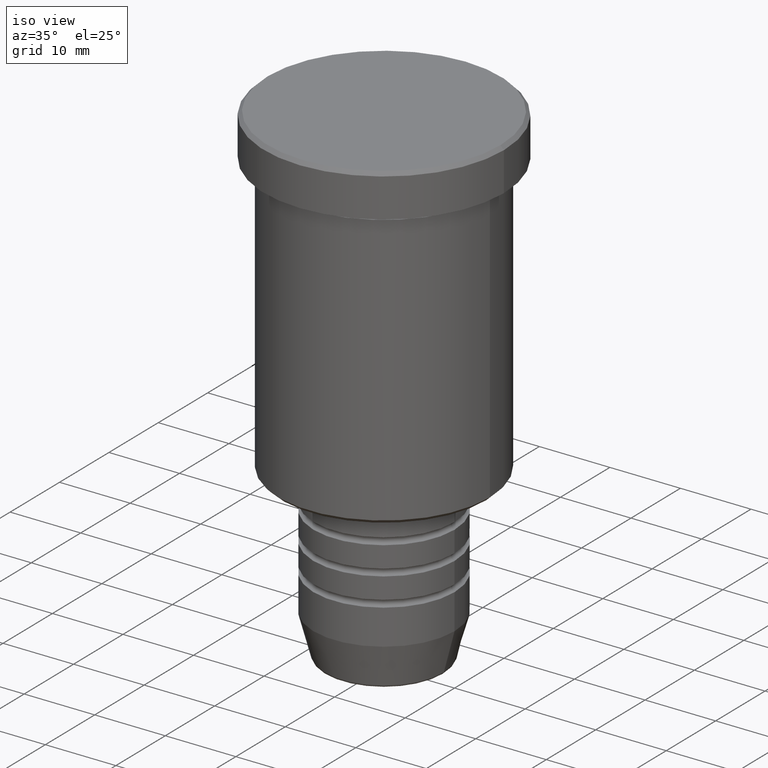
[diagram: clean part render]
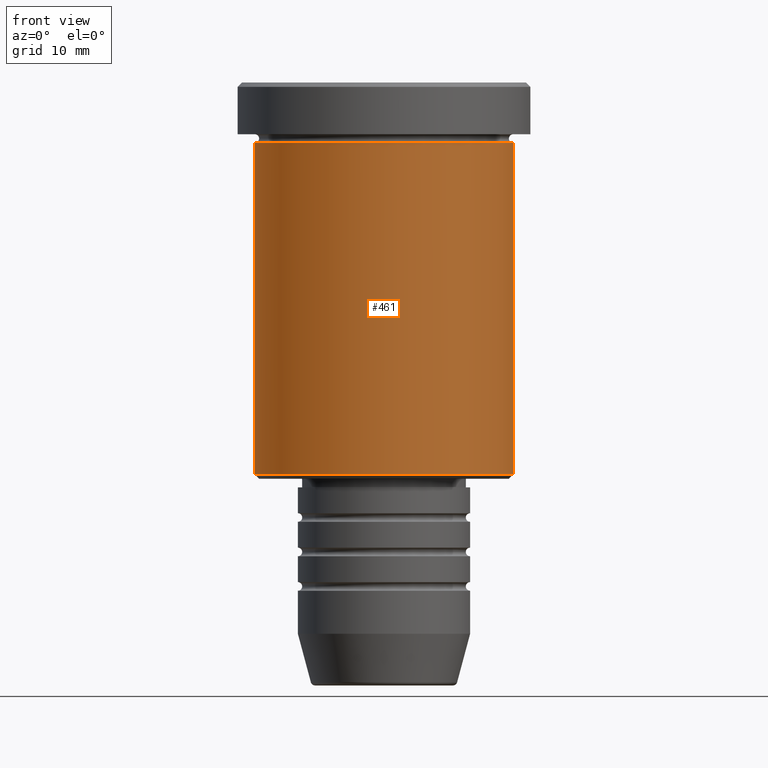
[diagram: tour spotlight — one face highlighted and labeled with its STEP entity id]
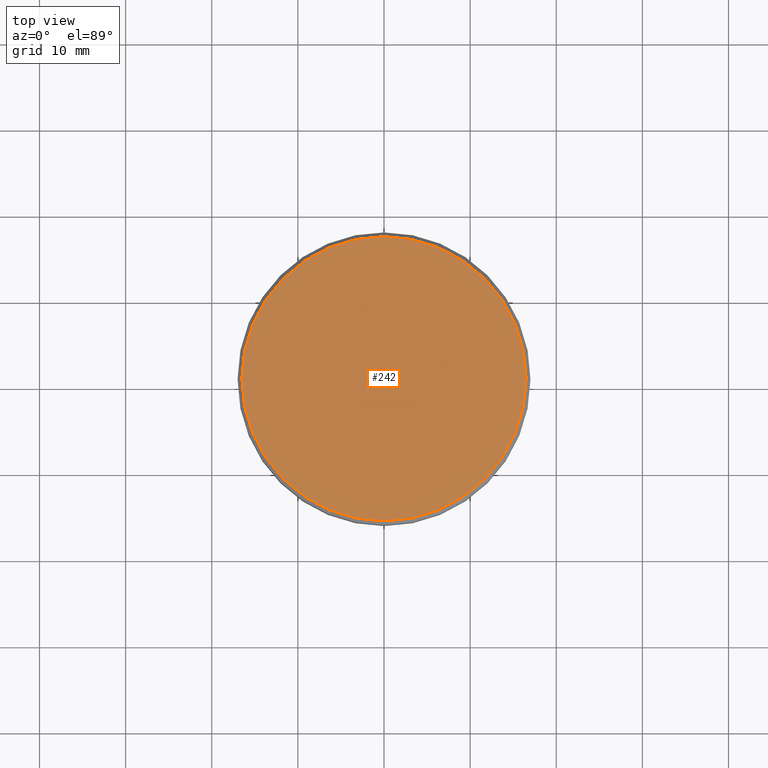
[diagram: tour spotlight — one face highlighted and labeled with its STEP entity id]
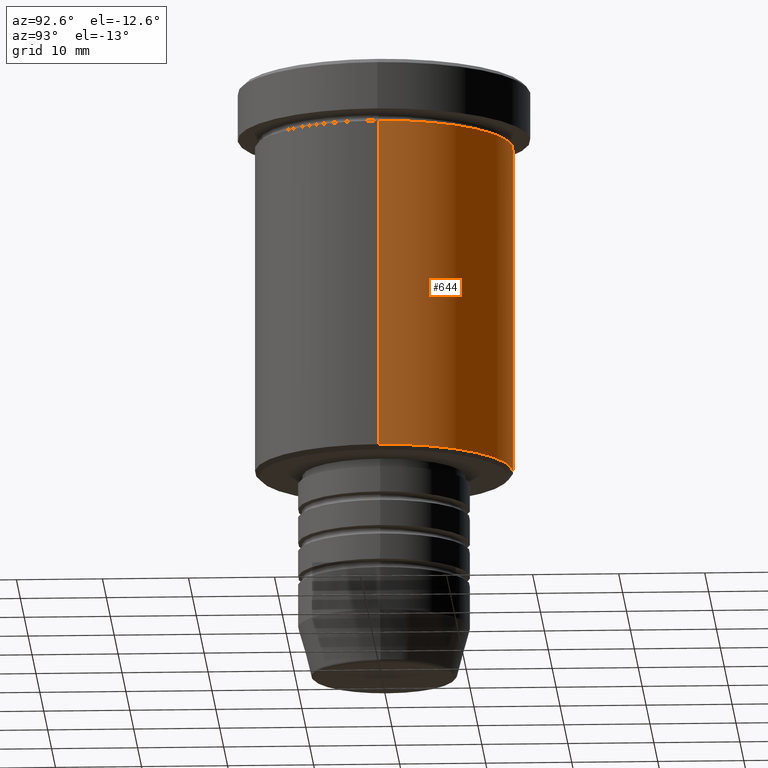
[diagram: tour spotlight — one face highlighted and labeled with its STEP entity id]
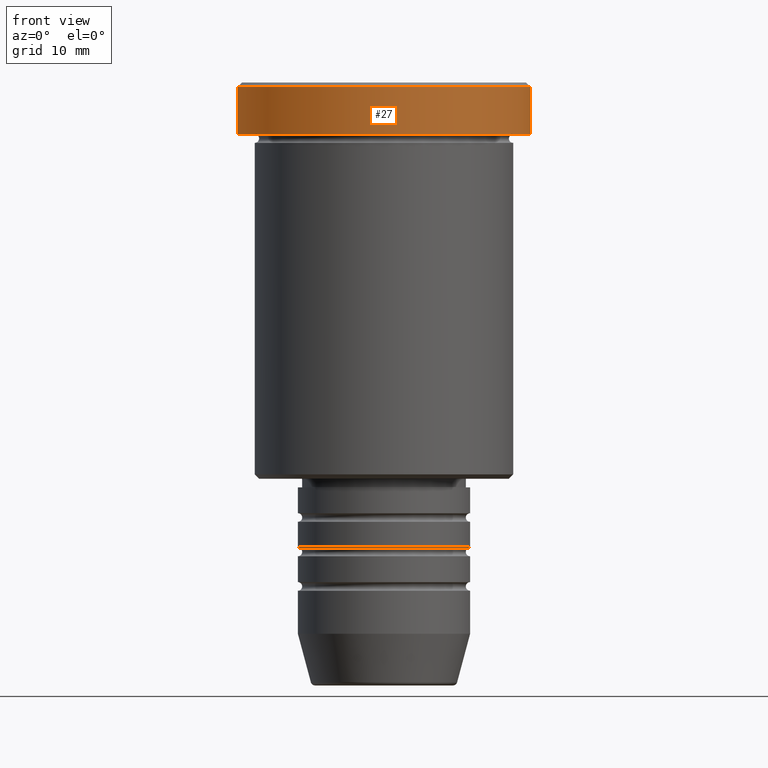
[diagram: tour spotlight — one face highlighted and labeled with its STEP entity id]
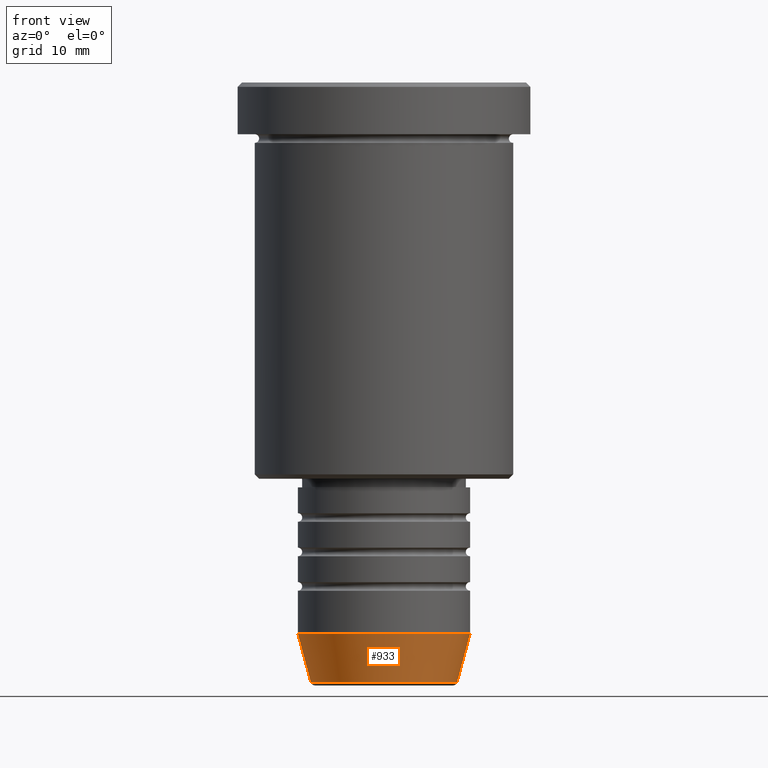
[diagram: tour spotlight — one face highlighted and labeled with its STEP entity id]
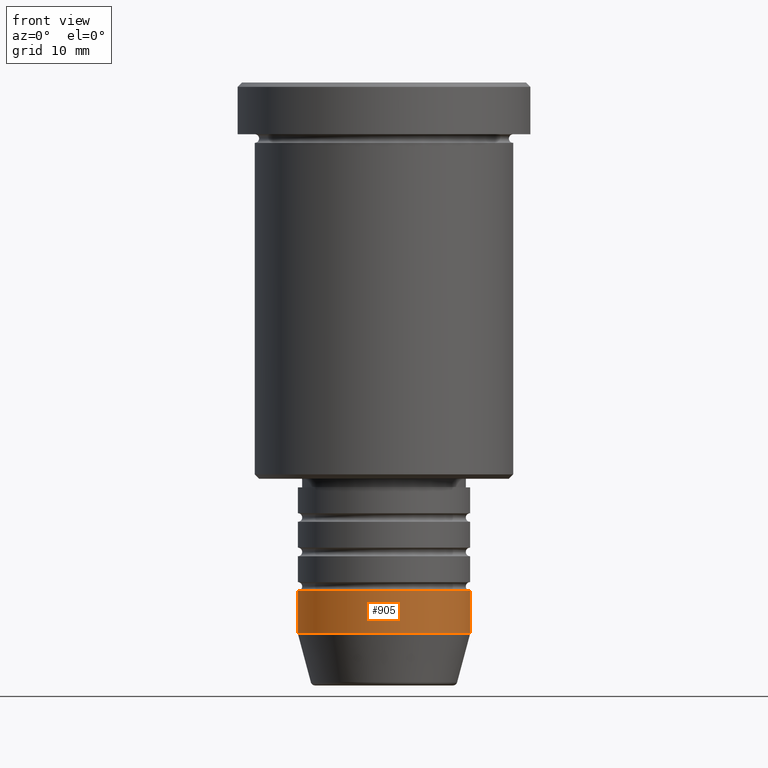
[diagram: tour spotlight — one face highlighted and labeled with its STEP entity id]
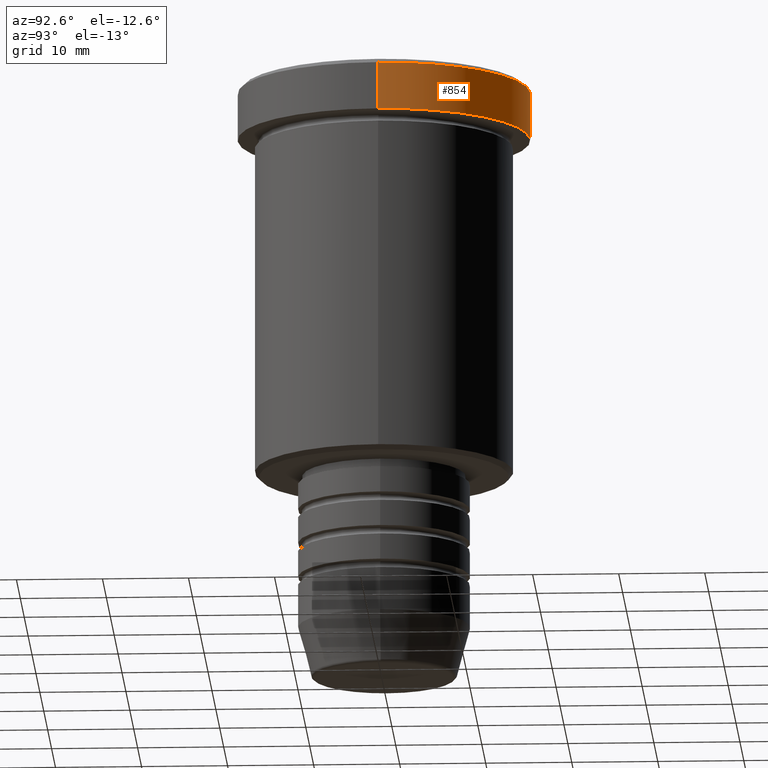
[diagram: tour spotlight — one face highlighted and labeled with its STEP entity id]
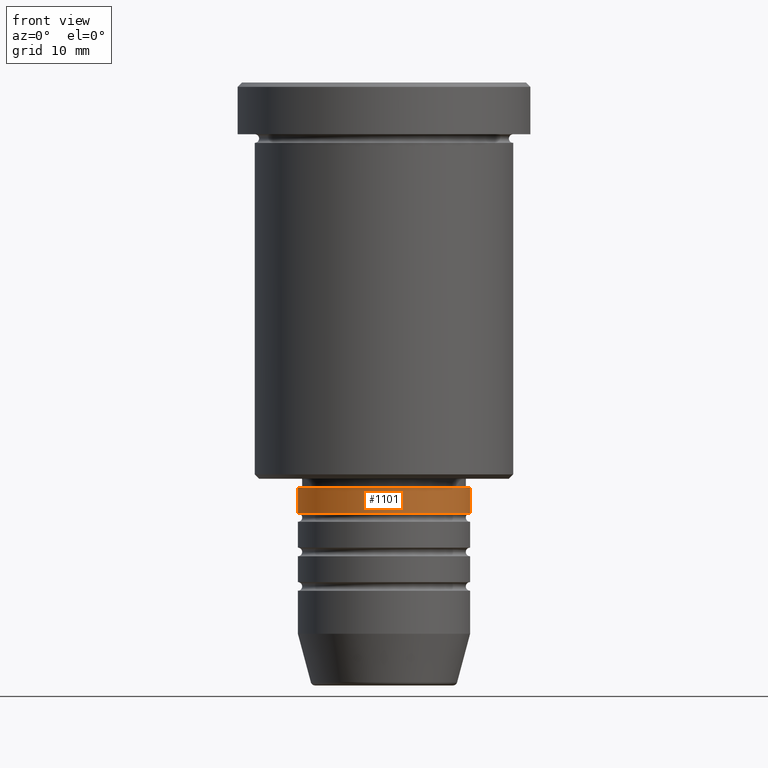
[diagram: tour spotlight — one face highlighted and labeled with its STEP entity id]
A machine part: a face-by-face anatomy tour. The part has 43 B-rep faces; the first image is the clean iso view, then the 8 largest visible faces are spotlighted one at a time (largest first), each with its STEP entity span.

Face 1 — front view, entity #461. In plain terms, the highlighted cylindrical surface (partial cylindrical patch) has radius 15 mm, axis along (-0, -0, 1).
Definition (entity closure, byte-faithful):
#52 = CARTESIAN_POINT ( 'NONE',  ( -15.00000000000000000, 1.836970198721029589E-15, -45.50000000000000711 ) ) ;
#70 = DIRECTION ( 'NONE',  ( -0.000000000000000000, -0.000000000000000000, 1.000000000000000000 ) ) ;
#74 = CIRCLE ( 'NONE', #769, 15.00000000000000000 ) ;
#108 = CARTESIAN_POINT ( 'NONE',  ( 15.00000000000000000, 0.000000000000000000, 0.000000000000000000 ) ) ;
#132 = CARTESIAN_POINT ( 'NONE',  ( 15.00000000000000000, 0.000000000000000000, -45.50000000000000711 ) ) ;
#137 = VERTEX_POINT ( 'NONE', #440 ) ;
#145 = VECTOR ( 'NONE', #1118, 1000.000000000000000 ) ;
#270 = VERTEX_POINT ( 'NONE', #843 ) ;
#271 = CARTESIAN_POINT ( 'NONE',  ( -15.00000000000000000, 1.836970198721029589E-15, 0.000000000000000000 ) ) ;
#315 = DIRECTION ( 'NONE',  ( -0.000000000000000000, -0.000000000000000000, 1.000000000000000000 ) ) ;
#331 = CARTESIAN_POINT ( 'NONE',  ( 0.000000000000000000, 0.000000000000000000, 0.000000000000000000 ) ) ;
#377 = EDGE_CURVE ( 'NONE', #1171, #270, #922, .T. ) ;
#382 = ORIENTED_EDGE ( 'NONE', *, *, #939, .F. ) ;
#420 = CYLINDRICAL_SURFACE ( 'NONE', #910, 15.00000000000000000 ) ;
#440 = CARTESIAN_POINT ( 'NONE',  ( -15.00000000000000000, 1.836970198721029589E-15, -6.999999999999995559 ) ) ;
#461 = ADVANCED_FACE ( 'NONE', ( #1168 ), #420, .T. ) ;
#494 = ORIENTED_EDGE ( 'NONE', *, *, #377, .T. ) ;
#515 = EDGE_LOOP ( 'NONE', ( #723, #983, #494, #382 ) ) ;
#521 = VECTOR ( 'NONE', #618, 1000.000000000000000 ) ;
#558 = AXIS2_PLACEMENT_3D ( 'NONE', #1126, #315, #679 ) ;
#594 = CARTESIAN_POINT ( 'NONE',  ( 0.000000000000000000, 0.000000000000000000, -6.999999999999995559 ) ) ;
#618 = DIRECTION ( 'NONE',  ( -0.000000000000000000, -0.000000000000000000, 1.000000000000000000 ) ) ;
#679 = DIRECTION ( 'NONE',  ( -1.000000000000000000, 0.000000000000000000, 0.000000000000000000 ) ) ;
#723 = ORIENTED_EDGE ( 'NONE', *, *, #1019, .F. ) ;
#762 = DIRECTION ( 'NONE',  ( 1.000000000000000000, 0.000000000000000000, 0.000000000000000000 ) ) ;
#769 = AXIS2_PLACEMENT_3D ( 'NONE', #594, #878, #1070 ) ;
#802 = EDGE_CURVE ( 'NONE', #919, #1171, #814, .T. ) ;
#814 = CIRCLE ( 'NONE', #558, 15.00000000000000000 ) ;
#843 = CARTESIAN_POINT ( 'NONE',  ( 15.00000000000000000, 0.000000000000000000, -6.999999999999995559 ) ) ;
#878 = DIRECTION ( 'NONE',  ( -0.000000000000000000, -0.000000000000000000, 1.000000000000000000 ) ) ;
#898 = LINE ( 'NONE', #271, #521 ) ;
#910 = AXIS2_PLACEMENT_3D ( 'NONE', #331, #70, #762 ) ;
#919 = VERTEX_POINT ( 'NONE', #52 ) ;
#922 = LINE ( 'NONE', #108, #145 ) ;
#939 = EDGE_CURVE ( 'NONE', #137, #270, #74, .T. ) ;
#983 = ORIENTED_EDGE ( 'NONE', *, *, #802, .T. ) ;
#1019 = EDGE_CURVE ( 'NONE', #919, #137, #898, .T. ) ;
#1070 = DIRECTION ( 'NONE',  ( 1.000000000000000000, 0.000000000000000000, 0.000000000000000000 ) ) ;
#1118 = DIRECTION ( 'NONE',  ( -0.000000000000000000, -0.000000000000000000, 1.000000000000000000 ) ) ;
#1126 = CARTESIAN_POINT ( 'NONE',  ( 0.000000000000000000, 0.000000000000000000, -45.50000000000000711 ) ) ;
#1168 = FACE_OUTER_BOUND ( 'NONE', #515, .T. ) ;
#1171 = VERTEX_POINT ( 'NONE', #132 ) ;

Face 2 — top view, entity #242. In plain terms, the highlighted planar face has unit normal (0, -0, 1).
Definition (entity closure, byte-faithful):
#5 = EDGE_CURVE ( 'NONE', #751, #237, #697, .T. ) ;
#103 = DIRECTION ( 'NONE',  ( 1.000000000000000000, 0.000000000000000000, 0.000000000000000000 ) ) ;
#160 = ORIENTED_EDGE ( 'NONE', *, *, #5, .T. ) ;
#237 = VERTEX_POINT ( 'NONE', #701 ) ;
#242 = ADVANCED_FACE ( 'NONE', ( #354 ), #717, .T. ) ;
#252 = EDGE_LOOP ( 'NONE', ( #160, #1164 ) ) ;
#264 = CIRCLE ( 'NONE', #895, 16.50000000000000000 ) ;
#302 = AXIS2_PLACEMENT_3D ( 'NONE', #492, #880, #1154 ) ;
#332 = EDGE_CURVE ( 'NONE', #237, #751, #264, .T. ) ;
#354 = FACE_OUTER_BOUND ( 'NONE', #252, .T. ) ;
#492 = CARTESIAN_POINT ( 'NONE',  ( 0.000000000000000000, 0.000000000000000000, 0.000000000000000000 ) ) ;
#569 = DIRECTION ( 'NONE',  ( -0.000000000000000000, -0.000000000000000000, 1.000000000000000000 ) ) ;
#620 = CARTESIAN_POINT ( 'NONE',  ( 0.000000000000000000, 0.000000000000000000, 0.000000000000000000 ) ) ;
#697 = CIRCLE ( 'NONE', #302, 16.50000000000000000 ) ;
#701 = CARTESIAN_POINT ( 'NONE',  ( 16.50000000000000000, 2.051283388571816887E-15, 0.000000000000000000 ) ) ;
#717 = PLANE ( 'NONE',  #834 ) ;
#735 = CARTESIAN_POINT ( 'NONE',  ( 0.000000000000000000, 0.000000000000000000, 0.000000000000000000 ) ) ;
#747 = CARTESIAN_POINT ( 'NONE',  ( -16.50000000000000000, 0.000000000000000000, 0.000000000000000000 ) ) ;
#751 = VERTEX_POINT ( 'NONE', #747 ) ;
#834 = AXIS2_PLACEMENT_3D ( 'NONE', #620, #1021, #103 ) ;
#880 = DIRECTION ( 'NONE',  ( -0.000000000000000000, -0.000000000000000000, 1.000000000000000000 ) ) ;
#895 = AXIS2_PLACEMENT_3D ( 'NONE', #735, #569, #1102 ) ;
#1021 = DIRECTION ( 'NONE',  ( 0.000000000000000000, -0.000000000000000000, 1.000000000000000000 ) ) ;
#1102 = DIRECTION ( 'NONE',  ( 1.000000000000000000, 0.000000000000000000, 0.000000000000000000 ) ) ;
#1154 = DIRECTION ( 'NONE',  ( 1.000000000000000000, 0.000000000000000000, 0.000000000000000000 ) ) ;
#1164 = ORIENTED_EDGE ( 'NONE', *, *, #332, .T. ) ;

Face 3 — auxiliary view, entity #644. In plain terms, the highlighted cylindrical surface (partial cylindrical patch) has radius 15 mm, axis along (-0, -0, 1).
Definition (entity closure, byte-faithful):
#50 = DIRECTION ( 'NONE',  ( -0.000000000000000000, -0.000000000000000000, 1.000000000000000000 ) ) ;
#52 = CARTESIAN_POINT ( 'NONE',  ( -15.00000000000000000, 1.836970198721029589E-15, -45.50000000000000711 ) ) ;
#98 = EDGE_CURVE ( 'NONE', #270, #137, #1167, .T. ) ;
#108 = CARTESIAN_POINT ( 'NONE',  ( 15.00000000000000000, 0.000000000000000000, 0.000000000000000000 ) ) ;
#132 = CARTESIAN_POINT ( 'NONE',  ( 15.00000000000000000, 0.000000000000000000, -45.50000000000000711 ) ) ;
#137 = VERTEX_POINT ( 'NONE', #440 ) ;
#145 = VECTOR ( 'NONE', #1118, 1000.000000000000000 ) ;
#168 = ORIENTED_EDGE ( 'NONE', *, *, #1019, .T. ) ;
#248 = ORIENTED_EDGE ( 'NONE', *, *, #377, .F. ) ;
#270 = VERTEX_POINT ( 'NONE', #843 ) ;
#271 = CARTESIAN_POINT ( 'NONE',  ( -15.00000000000000000, 1.836970198721029589E-15, 0.000000000000000000 ) ) ;
#278 = CARTESIAN_POINT ( 'NONE',  ( 0.000000000000000000, 0.000000000000000000, -45.50000000000000711 ) ) ;
#287 = DIRECTION ( 'NONE',  ( 1.000000000000000000, 0.000000000000000000, 0.000000000000000000 ) ) ;
#366 = CYLINDRICAL_SURFACE ( 'NONE', #813, 15.00000000000000000 ) ;
#377 = EDGE_CURVE ( 'NONE', #1171, #270, #922, .T. ) ;
#432 = ORIENTED_EDGE ( 'NONE', *, *, #98, .F. ) ;
#440 = CARTESIAN_POINT ( 'NONE',  ( -15.00000000000000000, 1.836970198721029589E-15, -6.999999999999995559 ) ) ;
#521 = VECTOR ( 'NONE', #618, 1000.000000000000000 ) ;
#535 = FACE_OUTER_BOUND ( 'NONE', #935, .T. ) ;
#576 = EDGE_CURVE ( 'NONE', #1171, #919, #674, .T. ) ;
#618 = DIRECTION ( 'NONE',  ( -0.000000000000000000, -0.000000000000000000, 1.000000000000000000 ) ) ;
#635 = AXIS2_PLACEMENT_3D ( 'NONE', #1058, #50, #1141 ) ;
#644 = ADVANCED_FACE ( 'NONE', ( #535 ), #366, .T. ) ;
#674 = CIRCLE ( 'NONE', #830, 15.00000000000000000 ) ;
#812 = DIRECTION ( 'NONE',  ( -0.000000000000000000, -0.000000000000000000, 1.000000000000000000 ) ) ;
#813 = AXIS2_PLACEMENT_3D ( 'NONE', #909, #812, #287 ) ;
#830 = AXIS2_PLACEMENT_3D ( 'NONE', #278, #1092, #1006 ) ;
#839 = ORIENTED_EDGE ( 'NONE', *, *, #576, .T. ) ;
#843 = CARTESIAN_POINT ( 'NONE',  ( 15.00000000000000000, 0.000000000000000000, -6.999999999999995559 ) ) ;
#898 = LINE ( 'NONE', #271, #521 ) ;
#909 = CARTESIAN_POINT ( 'NONE',  ( 0.000000000000000000, 0.000000000000000000, 0.000000000000000000 ) ) ;
#919 = VERTEX_POINT ( 'NONE', #52 ) ;
#922 = LINE ( 'NONE', #108, #145 ) ;
#935 = EDGE_LOOP ( 'NONE', ( #839, #168, #432, #248 ) ) ;
#1006 = DIRECTION ( 'NONE',  ( -1.000000000000000000, 0.000000000000000000, 0.000000000000000000 ) ) ;
#1019 = EDGE_CURVE ( 'NONE', #919, #137, #898, .T. ) ;
#1058 = CARTESIAN_POINT ( 'NONE',  ( 0.000000000000000000, 0.000000000000000000, -6.999999999999995559 ) ) ;
#1092 = DIRECTION ( 'NONE',  ( -0.000000000000000000, -0.000000000000000000, 1.000000000000000000 ) ) ;
#1118 = DIRECTION ( 'NONE',  ( -0.000000000000000000, -0.000000000000000000, 1.000000000000000000 ) ) ;
#1141 = DIRECTION ( 'NONE',  ( 1.000000000000000000, 0.000000000000000000, 0.000000000000000000 ) ) ;
#1167 = CIRCLE ( 'NONE', #635, 15.00000000000000000 ) ;
#1171 = VERTEX_POINT ( 'NONE', #132 ) ;

Face 4 — front view, entity #27. In plain terms, the highlighted cylindrical surface (partial cylindrical patch) has radius 17 mm, axis along (-0, -0, 1).
Definition (entity closure, byte-faithful):
#27 = ADVANCED_FACE ( 'NONE', ( #328 ), #65, .T. ) ;
#32 = ORIENTED_EDGE ( 'NONE', *, *, #44, .F. ) ;
#38 = AXIS2_PLACEMENT_3D ( 'NONE', #169, #82, #192 ) ;
#44 = EDGE_CURVE ( 'NONE', #151, #552, #416, .T. ) ;
#46 = DIRECTION ( 'NONE',  ( 1.000000000000000000, 0.000000000000000000, 0.000000000000000000 ) ) ;
#65 = CYLINDRICAL_SURFACE ( 'NONE', #700, 17.00000000000000000 ) ;
#82 = DIRECTION ( 'NONE',  ( -0.000000000000000000, -0.000000000000000000, 1.000000000000000000 ) ) ;
#96 = CARTESIAN_POINT ( 'NONE',  ( -17.00000000000000000, 2.081899558550500280E-15, -0.5000000000000073275 ) ) ;
#151 = VERTEX_POINT ( 'NONE', #722 ) ;
#169 = CARTESIAN_POINT ( 'NONE',  ( 0.000000000000000000, 0.000000000000000000, -5.999999999999994671 ) ) ;
#188 = CIRCLE ( 'NONE', #815, 17.00000000000000000 ) ;
#192 = DIRECTION ( 'NONE',  ( 1.000000000000000000, 0.000000000000000000, 0.000000000000000000 ) ) ;
#207 = VECTOR ( 'NONE', #546, 1000.000000000000000 ) ;
#250 = EDGE_CURVE ( 'NONE', #857, #605, #292, .T. ) ;
#292 = LINE ( 'NONE', #918, #207 ) ;
#298 = DIRECTION ( 'NONE',  ( 1.000000000000000000, 0.000000000000000000, 0.000000000000000000 ) ) ;
#322 = CIRCLE ( 'NONE', #38, 17.00000000000000000 ) ;
#328 = FACE_OUTER_BOUND ( 'NONE', #414, .T. ) ;
#402 = CARTESIAN_POINT ( 'NONE',  ( 0.000000000000000000, 0.000000000000000000, 0.000000000000000000 ) ) ;
#414 = EDGE_LOOP ( 'NONE', ( #32, #838, #1142, #756 ) ) ;
#416 = LINE ( 'NONE', #955, #970 ) ;
#507 = CARTESIAN_POINT ( 'NONE',  ( 17.00000000000000000, 0.000000000000000000, -5.999999999999994671 ) ) ;
#546 = DIRECTION ( 'NONE',  ( -0.000000000000000000, -0.000000000000000000, 1.000000000000000000 ) ) ;
#552 = VERTEX_POINT ( 'NONE', #96 ) ;
#553 = CARTESIAN_POINT ( 'NONE',  ( 0.000000000000000000, 0.000000000000000000, -0.5000000000000073275 ) ) ;
#605 = VERTEX_POINT ( 'NONE', #904 ) ;
#700 = AXIS2_PLACEMENT_3D ( 'NONE', #402, #859, #46 ) ;
#722 = CARTESIAN_POINT ( 'NONE',  ( -17.00000000000000000, 2.081899558550500280E-15, -5.999999999999994671 ) ) ;
#756 = ORIENTED_EDGE ( 'NONE', *, *, #1174, .T. ) ;
#815 = AXIS2_PLACEMENT_3D ( 'NONE', #553, #931, #298 ) ;
#838 = ORIENTED_EDGE ( 'NONE', *, *, #1056, .T. ) ;
#857 = VERTEX_POINT ( 'NONE', #507 ) ;
#859 = DIRECTION ( 'NONE',  ( -0.000000000000000000, -0.000000000000000000, 1.000000000000000000 ) ) ;
#904 = CARTESIAN_POINT ( 'NONE',  ( 17.00000000000000000, 0.000000000000000000, -0.5000000000000073275 ) ) ;
#918 = CARTESIAN_POINT ( 'NONE',  ( 17.00000000000000000, 0.000000000000000000, 0.000000000000000000 ) ) ;
#931 = DIRECTION ( 'NONE',  ( 0.000000000000000000, 0.000000000000000000, -1.000000000000000000 ) ) ;
#955 = CARTESIAN_POINT ( 'NONE',  ( -17.00000000000000000, 2.081899558550500280E-15, 0.000000000000000000 ) ) ;
#970 = VECTOR ( 'NONE', #1052, 1000.000000000000000 ) ;
#1052 = DIRECTION ( 'NONE',  ( -0.000000000000000000, -0.000000000000000000, 1.000000000000000000 ) ) ;
#1056 = EDGE_CURVE ( 'NONE', #151, #857, #322, .T. ) ;
#1142 = ORIENTED_EDGE ( 'NONE', *, *, #250, .T. ) ;
#1174 = EDGE_CURVE ( 'NONE', #605, #552, #188, .T. ) ;

Face 5 — front view, entity #933. In plain terms, the highlighted conical surface has half-angle 15 deg.
Definition (entity closure, byte-faithful):
#1 = DIRECTION ( 'NONE',  ( -0.000000000000000000, -0.000000000000000000, 1.000000000000000000 ) ) ;
#8 = VERTEX_POINT ( 'NONE', #234 ) ;
#39 = CARTESIAN_POINT ( 'NONE',  ( 10.00000000000000178, 0.000000000000000000, -64.00000000000000000 ) ) ;
#93 = CONICAL_SURFACE ( 'NONE', #243, 10.00000000000000178, 0.2617993877991501295 ) ;
#158 = DIRECTION ( 'NONE',  ( -0.2588190451025214056, 3.169619151431772953E-17, 0.9659258262890680902 ) ) ;
#204 = DIRECTION ( 'NONE',  ( -0.000000000000000000, -0.000000000000000000, 1.000000000000000000 ) ) ;
#234 = CARTESIAN_POINT ( 'NONE',  ( 10.00000000000000178, 0.000000000000000000, -64.00000000000000000 ) ) ;
#243 = AXIS2_PLACEMENT_3D ( 'NONE', #254, #589, #872 ) ;
#254 = CARTESIAN_POINT ( 'NONE',  ( 0.000000000000000000, 0.000000000000000000, -64.00000000000000000 ) ) ;
#260 = DIRECTION ( 'NONE',  ( 0.2588190451025214056, 0.000000000000000000, 0.9659258262890680902 ) ) ;
#290 = CARTESIAN_POINT ( 'NONE',  ( 8.491604264568312743, 0.000000000000000000, -69.62940952255127058 ) ) ;
#316 = LINE ( 'NONE', #670, #791 ) ;
#372 = CARTESIAN_POINT ( 'NONE',  ( -10.00000000000000178, 1.224646799147353454E-15, -64.00000000000000000 ) ) ;
#408 = FACE_OUTER_BOUND ( 'NONE', #995, .T. ) ;
#411 = VERTEX_POINT ( 'NONE', #1135 ) ;
#477 = EDGE_CURVE ( 'NONE', #1177, #8, #698, .T. ) ;
#517 = EDGE_CURVE ( 'NONE', #411, #1054, #316, .T. ) ;
#537 = ORIENTED_EDGE ( 'NONE', *, *, #477, .T. ) ;
#550 = DIRECTION ( 'NONE',  ( 1.000000000000000000, 0.000000000000000000, 0.000000000000000000 ) ) ;
#589 = DIRECTION ( 'NONE',  ( -0.000000000000000000, -0.000000000000000000, 1.000000000000000000 ) ) ;
#617 = ORIENTED_EDGE ( 'NONE', *, *, #649, .T. ) ;
#633 = CIRCLE ( 'NONE', #990, 10.00000000000000178 ) ;
#649 = EDGE_CURVE ( 'NONE', #411, #1177, #1086, .T. ) ;
#670 = CARTESIAN_POINT ( 'NONE',  ( -10.00000000000000178, 1.224646799147353454E-15, -64.00000000000000000 ) ) ;
#698 = LINE ( 'NONE', #39, #731 ) ;
#731 = VECTOR ( 'NONE', #260, 1000.000000000000000 ) ;
#766 = EDGE_CURVE ( 'NONE', #1054, #8, #633, .T. ) ;
#780 = ORIENTED_EDGE ( 'NONE', *, *, #517, .F. ) ;
#791 = VECTOR ( 'NONE', #158, 1000.000000000000000 ) ;
#844 = ORIENTED_EDGE ( 'NONE', *, *, #766, .F. ) ;
#872 = DIRECTION ( 'NONE',  ( 1.000000000000000000, 0.000000000000000000, 0.000000000000000000 ) ) ;
#933 = ADVANCED_FACE ( 'NONE', ( #408 ), #93, .T. ) ;
#964 = AXIS2_PLACEMENT_3D ( 'NONE', #1015, #1, #550 ) ;
#990 = AXIS2_PLACEMENT_3D ( 'NONE', #1122, #204, #1036 ) ;
#995 = EDGE_LOOP ( 'NONE', ( #780, #617, #537, #844 ) ) ;
#1015 = CARTESIAN_POINT ( 'NONE',  ( 0.000000000000000000, 0.000000000000000000, -69.62940952255127058 ) ) ;
#1036 = DIRECTION ( 'NONE',  ( 1.000000000000000000, 0.000000000000000000, 0.000000000000000000 ) ) ;
#1054 = VERTEX_POINT ( 'NONE', #372 ) ;
#1086 = CIRCLE ( 'NONE', #964, 8.491604264568312743 ) ;
#1122 = CARTESIAN_POINT ( 'NONE',  ( 0.000000000000000000, 0.000000000000000000, -64.00000000000000000 ) ) ;
#1135 = CARTESIAN_POINT ( 'NONE',  ( -8.491604264568312743, 1.132284198685156781E-15, -69.62940952255127058 ) ) ;
#1177 = VERTEX_POINT ( 'NONE', #290 ) ;

Face 6 — front view, entity #905. In plain terms, the highlighted cylindrical surface (partial cylindrical patch) has radius 10 mm, axis along (-0, -0, 1).
Definition (entity closure, byte-faithful):
#8 = VERTEX_POINT ( 'NONE', #234 ) ;
#84 = LINE ( 'NONE', #439, #1108 ) ;
#133 = EDGE_CURVE ( 'NONE', #441, #141, #1110, .T. ) ;
#138 = FACE_OUTER_BOUND ( 'NONE', #219, .T. ) ;
#139 = EDGE_CURVE ( 'NONE', #1054, #441, #999, .T. ) ;
#141 = VERTEX_POINT ( 'NONE', #626 ) ;
#143 = DIRECTION ( 'NONE',  ( 1.000000000000000000, 0.000000000000000000, 0.000000000000000000 ) ) ;
#172 = DIRECTION ( 'NONE',  ( -0.000000000000000000, -0.000000000000000000, 1.000000000000000000 ) ) ;
#177 = CARTESIAN_POINT ( 'NONE',  ( -10.00000000000000178, 1.224646799147353454E-15, 0.000000000000000000 ) ) ;
#204 = DIRECTION ( 'NONE',  ( -0.000000000000000000, -0.000000000000000000, 1.000000000000000000 ) ) ;
#219 = EDGE_LOOP ( 'NONE', ( #797, #621, #973, #1136 ) ) ;
#234 = CARTESIAN_POINT ( 'NONE',  ( 10.00000000000000178, 0.000000000000000000, -64.00000000000000000 ) ) ;
#262 = AXIS2_PLACEMENT_3D ( 'NONE', #778, #963, #143 ) ;
#372 = CARTESIAN_POINT ( 'NONE',  ( -10.00000000000000178, 1.224646799147353454E-15, -64.00000000000000000 ) ) ;
#431 = DIRECTION ( 'NONE',  ( 1.000000000000000000, 0.000000000000000000, 0.000000000000000000 ) ) ;
#439 = CARTESIAN_POINT ( 'NONE',  ( 10.00000000000000178, 0.000000000000000000, 0.000000000000000000 ) ) ;
#441 = VERTEX_POINT ( 'NONE', #858 ) ;
#496 = CYLINDRICAL_SURFACE ( 'NONE', #262, 10.00000000000000178 ) ;
#538 = DIRECTION ( 'NONE',  ( -0.000000000000000000, -0.000000000000000000, 1.000000000000000000 ) ) ;
#596 = AXIS2_PLACEMENT_3D ( 'NONE', #1093, #172, #431 ) ;
#621 = ORIENTED_EDGE ( 'NONE', *, *, #766, .T. ) ;
#626 = CARTESIAN_POINT ( 'NONE',  ( 10.00000000000000000, 0.000000000000000000, -59.00000000000000711 ) ) ;
#633 = CIRCLE ( 'NONE', #990, 10.00000000000000178 ) ;
#672 = EDGE_CURVE ( 'NONE', #8, #141, #84, .T. ) ;
#766 = EDGE_CURVE ( 'NONE', #1054, #8, #633, .T. ) ;
#778 = CARTESIAN_POINT ( 'NONE',  ( 0.000000000000000000, 0.000000000000000000, 0.000000000000000000 ) ) ;
#788 = VECTOR ( 'NONE', #538, 1000.000000000000000 ) ;
#797 = ORIENTED_EDGE ( 'NONE', *, *, #139, .F. ) ;
#858 = CARTESIAN_POINT ( 'NONE',  ( -10.00000000000000000, 1.224646799147353256E-15, -59.00000000000000711 ) ) ;
#905 = ADVANCED_FACE ( 'NONE', ( #138 ), #496, .T. ) ;
#963 = DIRECTION ( 'NONE',  ( -0.000000000000000000, -0.000000000000000000, 1.000000000000000000 ) ) ;
#973 = ORIENTED_EDGE ( 'NONE', *, *, #672, .T. ) ;
#990 = AXIS2_PLACEMENT_3D ( 'NONE', #1122, #204, #1036 ) ;
#999 = LINE ( 'NONE', #177, #788 ) ;
#1036 = DIRECTION ( 'NONE',  ( 1.000000000000000000, 0.000000000000000000, 0.000000000000000000 ) ) ;
#1054 = VERTEX_POINT ( 'NONE', #372 ) ;
#1093 = CARTESIAN_POINT ( 'NONE',  ( 0.000000000000000000, 0.000000000000000000, -59.00000000000000711 ) ) ;
#1108 = VECTOR ( 'NONE', #1179, 1000.000000000000000 ) ;
#1110 = CIRCLE ( 'NONE', #596, 10.00000000000000000 ) ;
#1122 = CARTESIAN_POINT ( 'NONE',  ( 0.000000000000000000, 0.000000000000000000, -64.00000000000000000 ) ) ;
#1136 = ORIENTED_EDGE ( 'NONE', *, *, #133, .F. ) ;
#1179 = DIRECTION ( 'NONE',  ( -0.000000000000000000, -0.000000000000000000, 1.000000000000000000 ) ) ;

Face 7 — auxiliary view, entity #854. In plain terms, the highlighted cylindrical surface (partial cylindrical patch) has radius 17 mm, axis along (-0, -0, 1).
Definition (entity closure, byte-faithful):
#11 = EDGE_CURVE ( 'NONE', #552, #605, #912, .T. ) ;
#44 = EDGE_CURVE ( 'NONE', #151, #552, #416, .T. ) ;
#67 = ORIENTED_EDGE ( 'NONE', *, *, #294, .T. ) ;
#96 = CARTESIAN_POINT ( 'NONE',  ( -17.00000000000000000, 2.081899558550500280E-15, -0.5000000000000073275 ) ) ;
#114 = AXIS2_PLACEMENT_3D ( 'NONE', #787, #1162, #947 ) ;
#151 = VERTEX_POINT ( 'NONE', #722 ) ;
#207 = VECTOR ( 'NONE', #546, 1000.000000000000000 ) ;
#212 = DIRECTION ( 'NONE',  ( -0.000000000000000000, -0.000000000000000000, 1.000000000000000000 ) ) ;
#250 = EDGE_CURVE ( 'NONE', #857, #605, #292, .T. ) ;
#292 = LINE ( 'NONE', #918, #207 ) ;
#294 = EDGE_CURVE ( 'NONE', #857, #151, #950, .T. ) ;
#296 = CARTESIAN_POINT ( 'NONE',  ( 0.000000000000000000, 0.000000000000000000, -5.999999999999994671 ) ) ;
#416 = LINE ( 'NONE', #955, #970 ) ;
#507 = CARTESIAN_POINT ( 'NONE',  ( 17.00000000000000000, 0.000000000000000000, -5.999999999999994671 ) ) ;
#516 = CARTESIAN_POINT ( 'NONE',  ( 0.000000000000000000, 0.000000000000000000, 0.000000000000000000 ) ) ;
#531 = ORIENTED_EDGE ( 'NONE', *, *, #250, .F. ) ;
#546 = DIRECTION ( 'NONE',  ( -0.000000000000000000, -0.000000000000000000, 1.000000000000000000 ) ) ;
#552 = VERTEX_POINT ( 'NONE', #96 ) ;
#588 = EDGE_LOOP ( 'NONE', ( #67, #1156, #1013, #531 ) ) ;
#605 = VERTEX_POINT ( 'NONE', #904 ) ;
#651 = DIRECTION ( 'NONE',  ( 1.000000000000000000, 0.000000000000000000, 0.000000000000000000 ) ) ;
#681 = AXIS2_PLACEMENT_3D ( 'NONE', #296, #212, #651 ) ;
#685 = FACE_OUTER_BOUND ( 'NONE', #588, .T. ) ;
#722 = CARTESIAN_POINT ( 'NONE',  ( -17.00000000000000000, 2.081899558550500280E-15, -5.999999999999994671 ) ) ;
#787 = CARTESIAN_POINT ( 'NONE',  ( 0.000000000000000000, 0.000000000000000000, -0.5000000000000073275 ) ) ;
#854 = ADVANCED_FACE ( 'NONE', ( #685 ), #1152, .T. ) ;
#857 = VERTEX_POINT ( 'NONE', #507 ) ;
#870 = AXIS2_PLACEMENT_3D ( 'NONE', #516, #974, #889 ) ;
#889 = DIRECTION ( 'NONE',  ( 1.000000000000000000, 0.000000000000000000, 0.000000000000000000 ) ) ;
#904 = CARTESIAN_POINT ( 'NONE',  ( 17.00000000000000000, 0.000000000000000000, -0.5000000000000073275 ) ) ;
#912 = CIRCLE ( 'NONE', #114, 17.00000000000000000 ) ;
#918 = CARTESIAN_POINT ( 'NONE',  ( 17.00000000000000000, 0.000000000000000000, 0.000000000000000000 ) ) ;
#947 = DIRECTION ( 'NONE',  ( 1.000000000000000000, 0.000000000000000000, 0.000000000000000000 ) ) ;
#950 = CIRCLE ( 'NONE', #681, 17.00000000000000000 ) ;
#955 = CARTESIAN_POINT ( 'NONE',  ( -17.00000000000000000, 2.081899558550500280E-15, 0.000000000000000000 ) ) ;
#970 = VECTOR ( 'NONE', #1052, 1000.000000000000000 ) ;
#974 = DIRECTION ( 'NONE',  ( -0.000000000000000000, -0.000000000000000000, 1.000000000000000000 ) ) ;
#1013 = ORIENTED_EDGE ( 'NONE', *, *, #11, .T. ) ;
#1052 = DIRECTION ( 'NONE',  ( -0.000000000000000000, -0.000000000000000000, 1.000000000000000000 ) ) ;
#1152 = CYLINDRICAL_SURFACE ( 'NONE', #870, 17.00000000000000000 ) ;
#1156 = ORIENTED_EDGE ( 'NONE', *, *, #44, .T. ) ;
#1162 = DIRECTION ( 'NONE',  ( 0.000000000000000000, 0.000000000000000000, -1.000000000000000000 ) ) ;

Face 8 — front view, entity #1101. In plain terms, the highlighted cylindrical surface (partial cylindrical patch) has radius 10 mm, axis along (-0, -0, 1).
Definition (entity closure, byte-faithful):
#31 = DIRECTION ( 'NONE',  ( -0.000000000000000000, -0.000000000000000000, 1.000000000000000000 ) ) ;
#62 = VERTEX_POINT ( 'NONE', #972 ) ;
#110 = VECTOR ( 'NONE', #944, 1000.000000000000000 ) ;
#128 = CIRCLE ( 'NONE', #203, 10.00000000000000178 ) ;
#146 = AXIS2_PLACEMENT_3D ( 'NONE', #645, #1020, #199 ) ;
#199 = DIRECTION ( 'NONE',  ( 1.000000000000000000, 0.000000000000000000, 0.000000000000000000 ) ) ;
#203 = AXIS2_PLACEMENT_3D ( 'NONE', #982, #602, #518 ) ;
#210 = CARTESIAN_POINT ( 'NONE',  ( -10.00000000000000000, 1.224646799147353256E-15, 0.000000000000000000 ) ) ;
#217 = LINE ( 'NONE', #573, #110 ) ;
#245 = AXIS2_PLACEMENT_3D ( 'NONE', #350, #828, #266 ) ;
#249 = CARTESIAN_POINT ( 'NONE',  ( -10.00000000000000178, 1.224646799147353454E-15, -49.99999999999999289 ) ) ;
#266 = DIRECTION ( 'NONE',  ( 1.000000000000000000, 0.000000000000000000, 0.000000000000000000 ) ) ;
#350 = CARTESIAN_POINT ( 'NONE',  ( 0.000000000000000000, 0.000000000000000000, 0.000000000000000000 ) ) ;
#404 = LINE ( 'NONE', #210, #653 ) ;
#421 = VERTEX_POINT ( 'NONE', #580 ) ;
#424 = EDGE_CURVE ( 'NONE', #986, #495, #128, .T. ) ;
#483 = ORIENTED_EDGE ( 'NONE', *, *, #424, .T. ) ;
#495 = VERTEX_POINT ( 'NONE', #1037 ) ;
#497 = EDGE_CURVE ( 'NONE', #495, #421, #217, .T. ) ;
#518 = DIRECTION ( 'NONE',  ( 1.000000000000000000, 0.000000000000000000, 0.000000000000000000 ) ) ;
#529 = CYLINDRICAL_SURFACE ( 'NONE', #245, 10.00000000000000000 ) ;
#534 = FACE_OUTER_BOUND ( 'NONE', #659, .T. ) ;
#573 = CARTESIAN_POINT ( 'NONE',  ( 10.00000000000000000, 0.000000000000000000, 0.000000000000000000 ) ) ;
#580 = CARTESIAN_POINT ( 'NONE',  ( 9.999999999999998224, 0.000000000000000000, -47.00000000000000000 ) ) ;
#602 = DIRECTION ( 'NONE',  ( -0.000000000000000000, -0.000000000000000000, 1.000000000000000000 ) ) ;
#645 = CARTESIAN_POINT ( 'NONE',  ( 0.000000000000000000, 0.000000000000000000, -47.00000000000000000 ) ) ;
#653 = VECTOR ( 'NONE', #31, 1000.000000000000000 ) ;
#659 = EDGE_LOOP ( 'NONE', ( #957, #483, #953, #1035 ) ) ;
#671 = EDGE_CURVE ( 'NONE', #62, #421, #1127, .T. ) ;
#690 = EDGE_CURVE ( 'NONE', #986, #62, #404, .T. ) ;
#828 = DIRECTION ( 'NONE',  ( -0.000000000000000000, -0.000000000000000000, 1.000000000000000000 ) ) ;
#944 = DIRECTION ( 'NONE',  ( -0.000000000000000000, -0.000000000000000000, 1.000000000000000000 ) ) ;
#953 = ORIENTED_EDGE ( 'NONE', *, *, #497, .T. ) ;
#957 = ORIENTED_EDGE ( 'NONE', *, *, #690, .F. ) ;
#972 = CARTESIAN_POINT ( 'NONE',  ( -9.999999999999998224, 1.224646799147353256E-15, -47.00000000000000000 ) ) ;
#982 = CARTESIAN_POINT ( 'NONE',  ( 0.000000000000000000, 0.000000000000000000, -49.99999999999999289 ) ) ;
#986 = VERTEX_POINT ( 'NONE', #249 ) ;
#1020 = DIRECTION ( 'NONE',  ( -0.000000000000000000, -0.000000000000000000, 1.000000000000000000 ) ) ;
#1035 = ORIENTED_EDGE ( 'NONE', *, *, #671, .F. ) ;
#1037 = CARTESIAN_POINT ( 'NONE',  ( 10.00000000000000178, 0.000000000000000000, -49.99999999999999289 ) ) ;
#1101 = ADVANCED_FACE ( 'NONE', ( #534 ), #529, .T. ) ;
#1127 = CIRCLE ( 'NONE', #146, 9.999999999999998224 ) ;